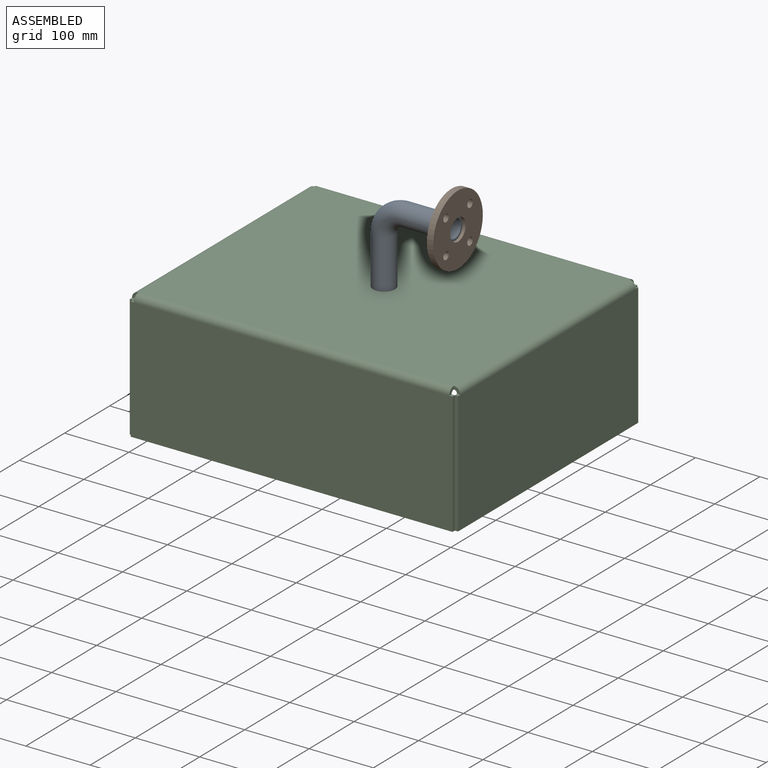
[diagram: assembled view]
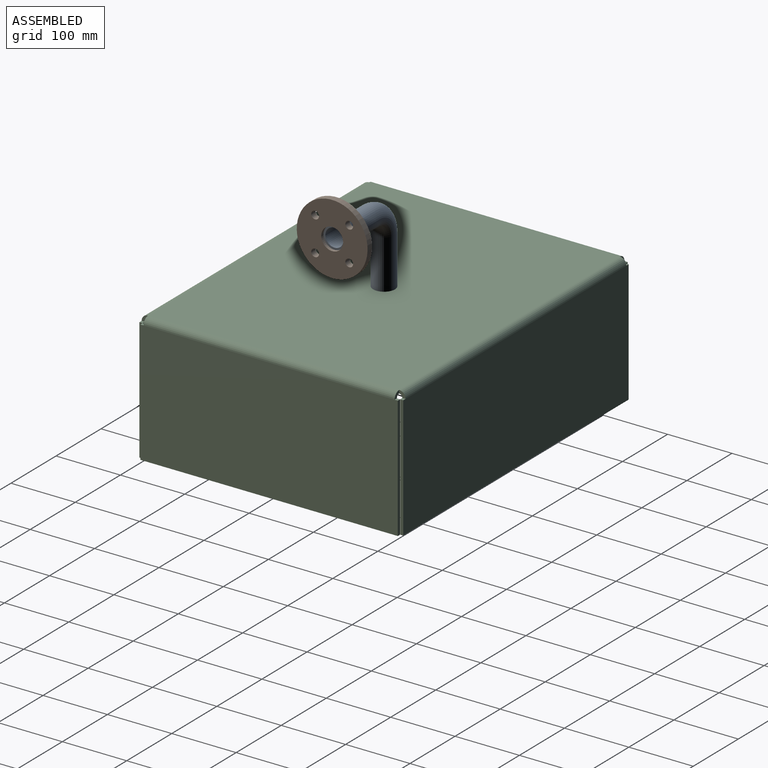
[diagram: assembled view, second angle]
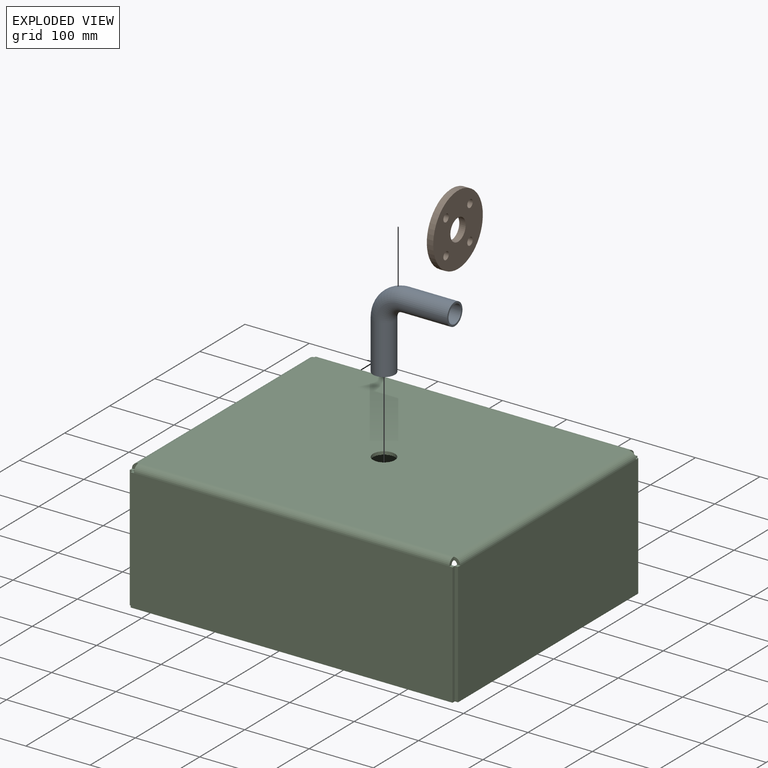
[diagram: exploded view]
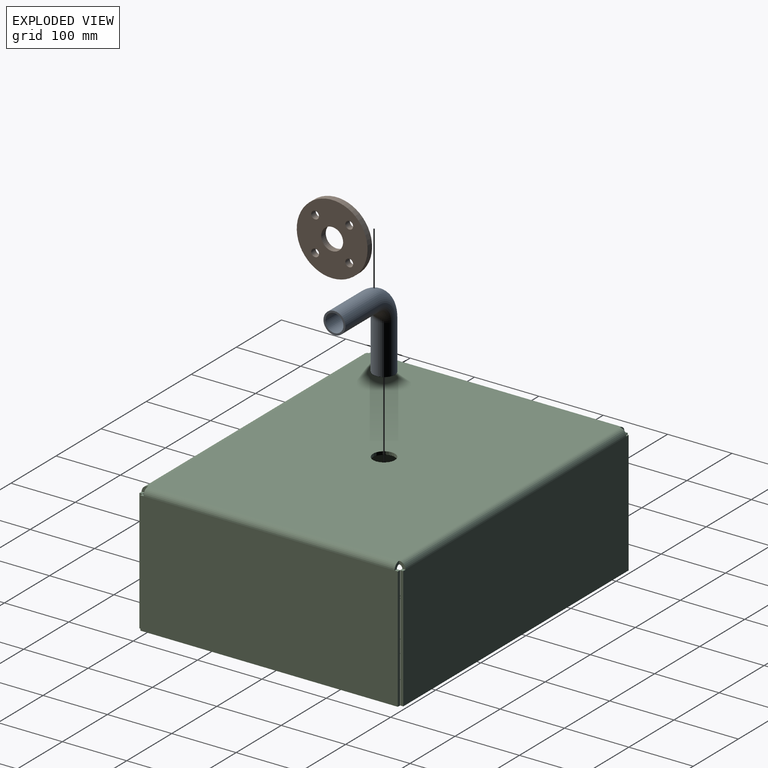
[diagram: exploded view, second angle]
ASSEMBLY  parts=3 mates=2
PART A: 8 faces, bbox 131.2x34x131.2 mm
  f0: plane 34x34mm, normal (0,0,-1), area 292.2mm2, adj f2,f5
  f1: plane 34x34mm, normal (1,0,0), area 292.2mm2, adj f4,f7
  f2: cylinder r=17mm len=76mm, axis (0,0,1), area 8117.9mm2, adj f0,f3
  f3: torus R=34mm, axis (0,1,0), area 5704.6mm2, adj f2,f4
  f4: cylinder r=17mm len=76mm, axis (1,0,0), area 8117.9mm2, adj f1,f3
  f5: cylinder r=14mm len=76mm, axis (0,0,1), area 6685.3mm2, adj f0,f6
  f6: torus R=34mm, axis (0,1,0), area 4697.9mm2, adj f5,f7
  f7: cylinder r=14mm len=76mm, axis (1,0,0), area 6685.3mm2, adj f1,f6
PART B: 8 faces, bbox 10x110x110 mm
  f0: cylinder r=17mm len=34mm, axis (-1,0,0), area 1068.1mm2, adj f6,f7
  f1: cylinder r=6mm len=12mm, axis (-1,0,0), area 377mm2, adj f6,f7
  f2: cylinder r=6mm len=12mm, axis (-1,0,0), area 377mm2, adj f6,f7
  f3: cylinder r=6mm len=12mm, axis (-1,0,0), area 377mm2, adj f6,f7
  f4: cylinder r=6mm len=12mm, axis (-1,0,0), area 377mm2, adj f6,f7
  f5: cylinder r=55mm len=110mm, axis (-1,0,0), area 3455.8mm2, adj f6,f7
  f6: plane 110x110mm, normal (1,0,0), area 8143mm2, adj f0,f1,f2,f3,f4,f5
  f7: plane 110x110mm, normal (-1,0,0), area 8143mm2, adj f0,f1,f2,f3,f4,f5
PART C: 47 faces, bbox 510x410x200 mm
  f0: cylinder r=17mm len=34mm, axis (0,0,1), area 534.1mm2, adj f1,f2
  f1: plane 490x390mm, normal (0,0,-1), area 190192.1mm2, adj f0,f13,f24,f35,f46
  f2: plane 490x390mm, normal (0,0,1), area 190192.1mm2, adj f0,f12,f23,f34,f45
  f3: plane 5x4.98mm, normal (0,0,1), area 24.9mm2, adj f7,f8,f9,f10
  f4: plane 499.96x5mm, normal (0,0,-1), area 2499.8mm2, adj f5,f7,f8,f9
  f5: plane 190x5mm, normal (-1,0,0), area 950mm2, adj f4,f6,f8,f9
  f6: plane 5x4.98mm, normal (0,0,1), area 24.9mm2, adj f5,f8,f9,f11
  f7: plane 190x5mm, normal (1,0,0), area 950mm2, adj f3,f4,f8,f9
  f8: plane 499.96x190mm, normal (0,1,0), area 94992.4mm2, adj f3,f4,f5,f6,f7,f13
  f9: plane 499.96x190mm, normal (0,-1,0), area 94992.4mm2, adj f3,f4,f5,f6,f7,f12
  f10: plane 10x10mm, normal (1,0,0), area 58.9mm2, adj f3,f12,f13,f33
  f11: plane 10x10mm, normal (-1,0,0), area 58.9mm2, adj f6,f12,f13,f43
  f12: cylinder r=10mm len=490mm, axis (1,0,0), area 7696.9mm2, adj f2,f9,f10,f11
  f13: cylinder r=5mm len=490mm, axis (1,0,0), area 3848.5mm2, adj f1,f8,f10,f11
  f14: plane 5x4.98mm, normal (0,0,1), area 24.9mm2, adj f18,f19,f20,f21
  f15: plane 499.96x5mm, normal (0,0,-1), area 2499.8mm2, adj f16,f18,f19,f20
  f16: plane 190x5mm, normal (1,0,0), area 950mm2, adj f15,f17,f19,f20
  f17: plane 5x4.98mm, normal (0,0,1), area 24.9mm2, adj f16,f19,f20,f22
  f18: plane 190x5mm, normal (-1,0,0), area 950mm2, adj f14,f15,f19,f20
  f19: plane 499.96x190mm, normal (0,-1,0), area 94992.4mm2, adj f14,f15,f16,f17,f18,f24
  f20: plane 499.96x190mm, normal (0,1,0), area 94992.4mm2, adj f14,f15,f16,f17,f18,f23
  f21: plane 10x10mm, normal (-1,0,0), area 58.9mm2, adj f14,f23,f24,f44
  f22: plane 10x10mm, normal (1,0,0), area 58.9mm2, adj f17,f23,f24,f32
  f23: cylinder r=10mm len=490mm, axis (-1,0,0), area 7696.9mm2, adj f2,f20,f21,f22
  f24: cylinder r=5mm len=490mm, axis (-1,0,0), area 3848.5mm2, adj f1,f19,f21,f22
  f25: plane 5x4.98mm, normal (0,0,1), area 24.9mm2, adj f29,f30,f31,f32
  f26: plane 399.96x5mm, normal (0,0,-1), area 1999.8mm2, adj f27,f29,f30,f31
  f27: plane 190x5mm, normal (0,-1,0), area 950mm2, adj f26,f28,f30,f31
  f28: plane 5x4.98mm, normal (0,0,1), area 24.9mm2, adj f27,f30,f31,f33
  f29: plane 190x5mm, normal (0,1,0), area 950mm2, adj f25,f26,f30,f31
  f30: plane 399.96x190mm, normal (-1,0,0), area 75992.4mm2, adj f25,f26,f27,f28,f29,f35
  f31: plane 399.96x190mm, normal (1,0,0), area 75992.4mm2, adj f25,f26,f27,f28,f29,f34
  f32: plane 10x10mm, normal (0,1,0), area 58.9mm2, adj f22,f25,f34,f35
  f33: plane 10x10mm, normal (0,-1,0), area 58.9mm2, adj f10,f28,f34,f35
  f34: cylinder r=10mm len=390mm, axis (0,1,0), area 6126.1mm2, adj f2,f31,f32,f33
  f35: cylinder r=5mm len=390mm, axis (0,1,0), area 3063.1mm2, adj f1,f30,f32,f33
  f36: plane 5x4.98mm, normal (0,0,1), area 24.9mm2, adj f40,f41,f42,f43
  f37: plane 399.96x5mm, normal (0,0,-1), area 1999.8mm2, adj f38,f40,f41,f42
  f38: plane 190x5mm, normal (0,1,0), area 950mm2, adj f37,f39,f41,f42
  f39: plane 5x4.98mm, normal (0,0,1), area 24.9mm2, adj f38,f41,f42,f44
  f40: plane 190x5mm, normal (0,-1,0), area 950mm2, adj f36,f37,f41,f42
  f41: plane 399.96x190mm, normal (1,0,0), area 75992.4mm2, adj f36,f37,f38,f39,f40,f46
  f42: plane 399.96x190mm, normal (-1,0,0), area 75992.4mm2, adj f36,f37,f38,f39,f40,f45
  f43: plane 10x10mm, normal (0,-1,0), area 58.9mm2, adj f11,f36,f45,f46
  f44: plane 10x10mm, normal (0,1,0), area 58.9mm2, adj f21,f39,f45,f46
  f45: cylinder r=10mm len=390mm, axis (0,-1,0), area 6126.1mm2, adj f2,f42,f43,f44
  f46: cylinder r=5mm len=390mm, axis (0,-1,0), area 3063.1mm2, adj f1,f41,f43,f44
PLACE A t=(233.94,103.4,476.48)mm
PLACE B t=(338.94,-46.79,586.48)mm
PLACE C t=(233.94,660.79,471.48)mm
MATE fastened A.f2 <-> C.f0  axis (0,0,-1) through (233.94,103.4,476.48)mm
MATE fastened B.f5 <-> A.f7  axis (-1,0,0) through (338.94,103.4,586.48)mm
